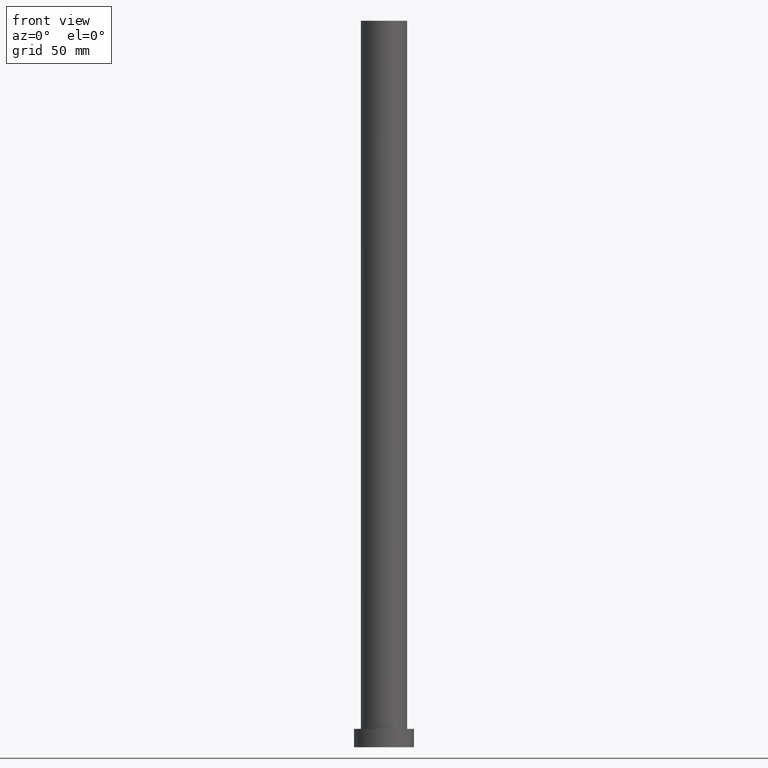
[diagram: clean part render]
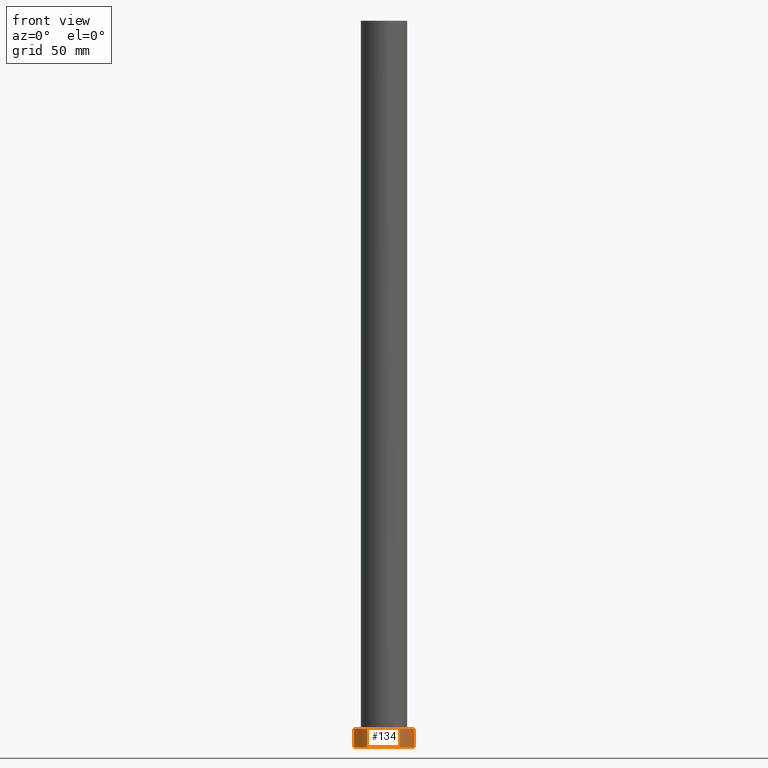
[diagram: same view with one face highlighted and labeled with its STEP entity id]
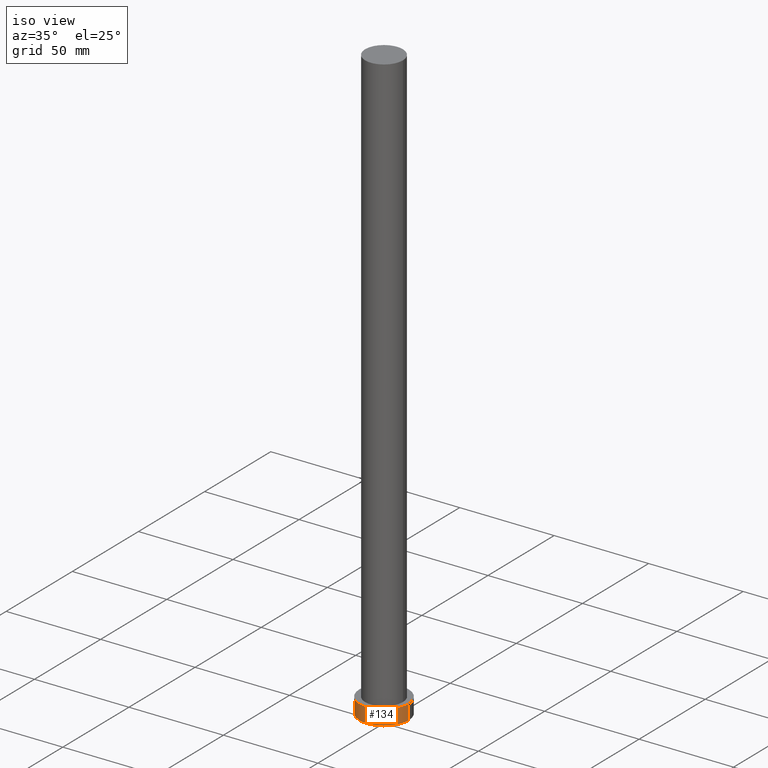
[diagram: same view with one face highlighted and labeled with its STEP entity id]
A machine part, front view. The second image highlights one B-rep face of the part: STEP entity #134.
A second angle (iso view) of the same face is appended — the face is thin or edge-on in the first view.
In plain terms, the highlighted cylindrical surface (edge-blend (fillet) strip) has radius 13 mm, axis along (-0, -0, -1).
Its self-contained STEP definition (entity closure, byte-faithful):
#8 = DIRECTION ( 'NONE',  ( 1.000000000000000000, 0.000000000000000000, 0.000000000000000000 ) ) ;
#12 = VERTEX_POINT ( 'NONE', #77 ) ;
#19 = DIRECTION ( 'NONE',  ( -1.000000000000000000, 0.000000000000000000, 0.000000000000000000 ) ) ;
#22 = FACE_OUTER_BOUND ( 'NONE', #227, .T. ) ;
#24 = CARTESIAN_POINT ( 'NONE',  ( -13.00000000000000178, 0.000000000000000000, 8.000000000000000000 ) ) ;
#33 = VERTEX_POINT ( 'NONE', #48 ) ;
#37 = DIRECTION ( 'NONE',  ( -0.000000000000000000, -0.000000000000000000, -1.000000000000000000 ) ) ;
#48 = CARTESIAN_POINT ( 'NONE',  ( -13.00000000000000178, 0.000000000000000000, 0.000000000000000000 ) ) ;
#51 = VECTOR ( 'NONE', #37, 1000.000000000000000 ) ;
#56 = CARTESIAN_POINT ( 'NONE',  ( 13.00000000000000178, 1.592040838891559293E-15, 8.000000000000000000 ) ) ;
#57 = CARTESIAN_POINT ( 'NONE',  ( 0.000000000000000000, 0.000000000000000000, 8.000000000000000000 ) ) ;
#59 = CARTESIAN_POINT ( 'NONE',  ( 0.000000000000000000, 0.000000000000000000, 8.000000000000000000 ) ) ;
#61 = DIRECTION ( 'NONE',  ( 0.000000000000000000, 0.000000000000000000, 1.000000000000000000 ) ) ;
#70 = ORIENTED_EDGE ( 'NONE', *, *, #182, .F. ) ;
#72 = CARTESIAN_POINT ( 'NONE',  ( -13.00000000000000178, 0.000000000000000000, 8.000000000000000000 ) ) ;
#77 = CARTESIAN_POINT ( 'NONE',  ( 13.00000000000000178, 1.592040838891559293E-15, 0.000000000000000000 ) ) ;
#85 = AXIS2_PLACEMENT_3D ( 'NONE', #59, #125, #19 ) ;
#105 = CARTESIAN_POINT ( 'NONE',  ( 0.000000000000000000, 0.000000000000000000, 0.000000000000000000 ) ) ;
#107 = EDGE_CURVE ( 'NONE', #229, #33, #195, .T. ) ;
#111 = CIRCLE ( 'NONE', #139, 13.00000000000000178 ) ;
#125 = DIRECTION ( 'NONE',  ( -0.000000000000000000, -0.000000000000000000, -1.000000000000000000 ) ) ;
#134 = ADVANCED_FACE ( 'NONE', ( #22 ), #165, .T. ) ;
#139 = AXIS2_PLACEMENT_3D ( 'NONE', #57, #61, #145 ) ;
#140 = EDGE_CURVE ( 'NONE', #33, #12, #246, .T. ) ;
#141 = DIRECTION ( 'NONE',  ( -0.000000000000000000, -0.000000000000000000, -1.000000000000000000 ) ) ;
#142 = CARTESIAN_POINT ( 'NONE',  ( 13.00000000000000178, 1.592040838891559293E-15, 8.000000000000000000 ) ) ;
#145 = DIRECTION ( 'NONE',  ( 1.000000000000000000, 0.000000000000000000, 0.000000000000000000 ) ) ;
#160 = DIRECTION ( 'NONE',  ( 0.000000000000000000, 0.000000000000000000, 1.000000000000000000 ) ) ;
#165 = CYLINDRICAL_SURFACE ( 'NONE', #85, 13.00000000000000178 ) ;
#167 = VECTOR ( 'NONE', #141, 1000.000000000000000 ) ;
#168 = EDGE_CURVE ( 'NONE', #229, #221, #111, .T. ) ;
#182 = EDGE_CURVE ( 'NONE', #221, #12, #235, .T. ) ;
#195 = LINE ( 'NONE', #72, #51 ) ;
#204 = ORIENTED_EDGE ( 'NONE', *, *, #168, .F. ) ;
#219 = ORIENTED_EDGE ( 'NONE', *, *, #107, .T. ) ;
#221 = VERTEX_POINT ( 'NONE', #142 ) ;
#225 = AXIS2_PLACEMENT_3D ( 'NONE', #105, #160, #8 ) ;
#227 = EDGE_LOOP ( 'NONE', ( #70, #204, #219, #249 ) ) ;
#229 = VERTEX_POINT ( 'NONE', #24 ) ;
#235 = LINE ( 'NONE', #56, #167 ) ;
#246 = CIRCLE ( 'NONE', #225, 13.00000000000000178 ) ;
#249 = ORIENTED_EDGE ( 'NONE', *, *, #140, .T. ) ;